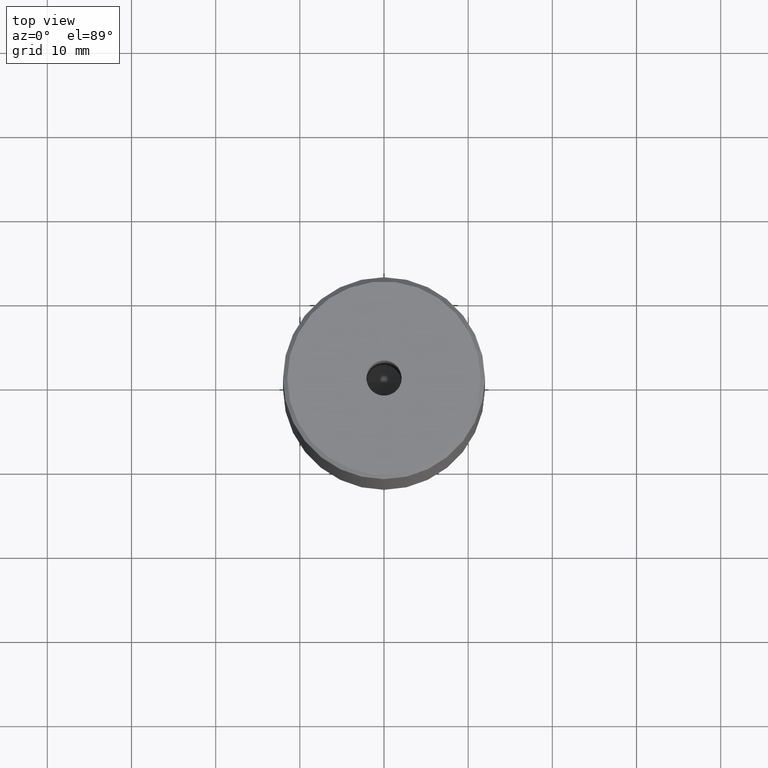
[diagram: clean part render]
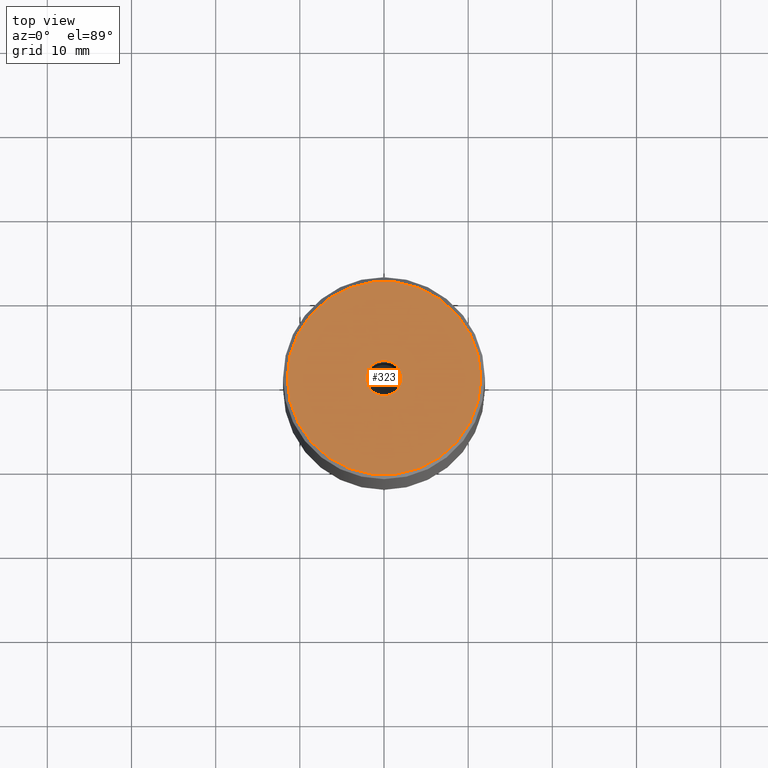
[diagram: same view with one face highlighted and labeled with its STEP entity id]
A machine part, top view. The second image highlights one B-rep face of the part: STEP entity #323.
In plain terms, the highlighted planar face has unit normal (0, -0, 1).
Its self-contained STEP definition (entity closure, byte-faithful):
#3 = EDGE_LOOP ( 'NONE', ( #304, #363 ) ) ;
#17 = DIRECTION ( 'NONE',  ( 1.000000000000000000, 0.000000000000000000, 0.000000000000000000 ) ) ;
#25 = ORIENTED_EDGE ( 'NONE', *, *, #501, .T. ) ;
#31 = CIRCLE ( 'NONE', #378, 2.099999999999998757 ) ;
#38 = FACE_OUTER_BOUND ( 'NONE', #200, .T. ) ;
#46 = CIRCLE ( 'NONE', #357, 11.49999999999999467 ) ;
#72 = PLANE ( 'NONE',  #108 ) ;
#108 = AXIS2_PLACEMENT_3D ( 'NONE', #581, #441, #359 ) ;
#127 = VERTEX_POINT ( 'NONE', #398 ) ;
#151 = DIRECTION ( 'NONE',  ( 1.000000000000000000, 0.000000000000000000, 0.000000000000000000 ) ) ;
#183 = DIRECTION ( 'NONE',  ( 1.000000000000000000, 0.000000000000000000, 0.000000000000000000 ) ) ;
#200 = EDGE_LOOP ( 'NONE', ( #25, #339 ) ) ;
#202 = EDGE_CURVE ( 'NONE', #256, #127, #468, .T. ) ;
#227 = CARTESIAN_POINT ( 'NONE',  ( 2.099999999999998757, 0.000000000000000000, -1.990051048614449116E-16 ) ) ;
#234 = CARTESIAN_POINT ( 'NONE',  ( 11.49999999999999467, 1.438959988998139766E-15, 0.000000000000000000 ) ) ;
#256 = VERTEX_POINT ( 'NONE', #234 ) ;
#258 = FACE_BOUND ( 'NONE', #3, .T. ) ;
#260 = EDGE_CURVE ( 'NONE', #475, #539, #386, .T. ) ;
#304 = ORIENTED_EDGE ( 'NONE', *, *, #260, .F. ) ;
#323 = ADVANCED_FACE ( 'NONE', ( #258, #38 ), #72, .T. ) ;
#339 = ORIENTED_EDGE ( 'NONE', *, *, #202, .T. ) ;
#357 = AXIS2_PLACEMENT_3D ( 'NONE', #544, #499, #183 ) ;
#359 = DIRECTION ( 'NONE',  ( 1.000000000000000000, 0.000000000000000000, 0.000000000000000000 ) ) ;
#363 = ORIENTED_EDGE ( 'NONE', *, *, #522, .F. ) ;
#369 = DIRECTION ( 'NONE',  ( 1.000000000000000000, 0.000000000000000000, 0.000000000000000000 ) ) ;
#378 = AXIS2_PLACEMENT_3D ( 'NONE', #548, #412, #369 ) ;
#386 = CIRCLE ( 'NONE', #460, 2.099999999999998757 ) ;
#398 = CARTESIAN_POINT ( 'NONE',  ( -11.49999999999999467, 0.000000000000000000, 0.000000000000000000 ) ) ;
#412 = DIRECTION ( 'NONE',  ( -0.000000000000000000, -0.000000000000000000, 1.000000000000000000 ) ) ;
#425 = CARTESIAN_POINT ( 'NONE',  ( 0.000000000000000000, 0.000000000000000000, -1.990051048614449116E-16 ) ) ;
#441 = DIRECTION ( 'NONE',  ( 0.000000000000000000, -0.000000000000000000, 1.000000000000000000 ) ) ;
#460 = AXIS2_PLACEMENT_3D ( 'NONE', #425, #519, #17 ) ;
#468 = CIRCLE ( 'NONE', #506, 11.49999999999999467 ) ;
#475 = VERTEX_POINT ( 'NONE', #227 ) ;
#476 = DIRECTION ( 'NONE',  ( -0.000000000000000000, -0.000000000000000000, 1.000000000000000000 ) ) ;
#499 = DIRECTION ( 'NONE',  ( -0.000000000000000000, -0.000000000000000000, 1.000000000000000000 ) ) ;
#501 = EDGE_CURVE ( 'NONE', #127, #256, #46, .T. ) ;
#502 = CARTESIAN_POINT ( 'NONE',  ( -2.099999999999998757, 2.571758278209440478E-16, -1.990051048614449116E-16 ) ) ;
#506 = AXIS2_PLACEMENT_3D ( 'NONE', #558, #476, #151 ) ;
#519 = DIRECTION ( 'NONE',  ( -0.000000000000000000, -0.000000000000000000, 1.000000000000000000 ) ) ;
#522 = EDGE_CURVE ( 'NONE', #539, #475, #31, .T. ) ;
#539 = VERTEX_POINT ( 'NONE', #502 ) ;
#544 = CARTESIAN_POINT ( 'NONE',  ( 0.000000000000000000, 0.000000000000000000, 0.000000000000000000 ) ) ;
#548 = CARTESIAN_POINT ( 'NONE',  ( 0.000000000000000000, 0.000000000000000000, -1.990051048614449116E-16 ) ) ;
#558 = CARTESIAN_POINT ( 'NONE',  ( 0.000000000000000000, 0.000000000000000000, 0.000000000000000000 ) ) ;
#581 = CARTESIAN_POINT ( 'NONE',  ( 0.000000000000000000, 0.000000000000000000, 0.000000000000000000 ) ) ;